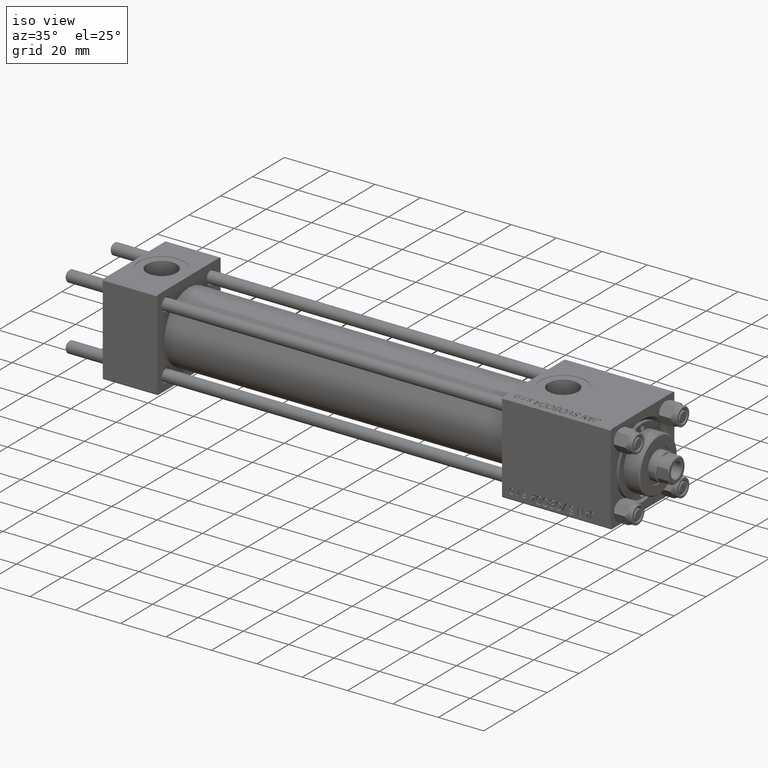
[diagram: clean part render]
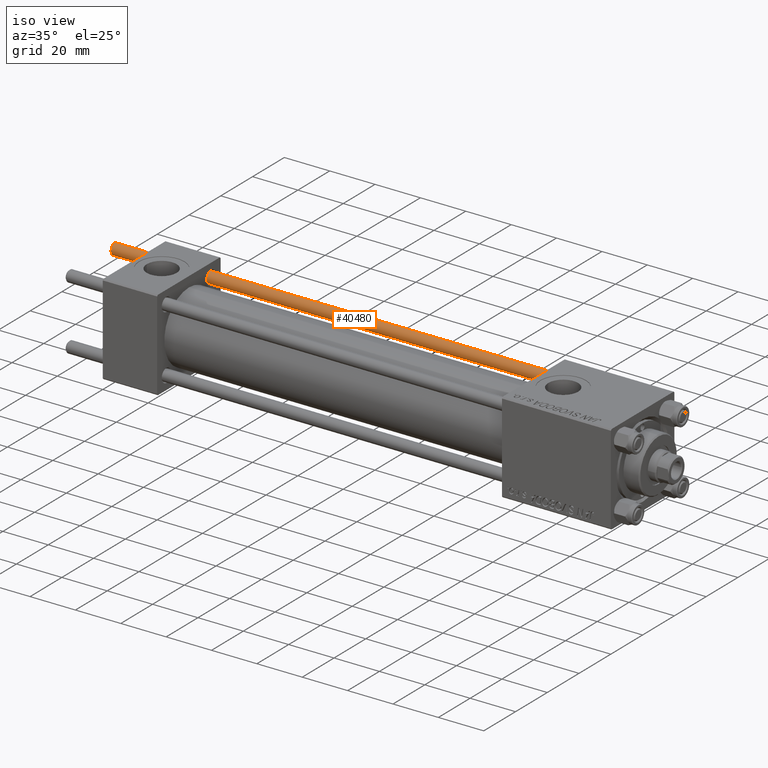
[diagram: same view with one face highlighted and labeled with its STEP entity id]
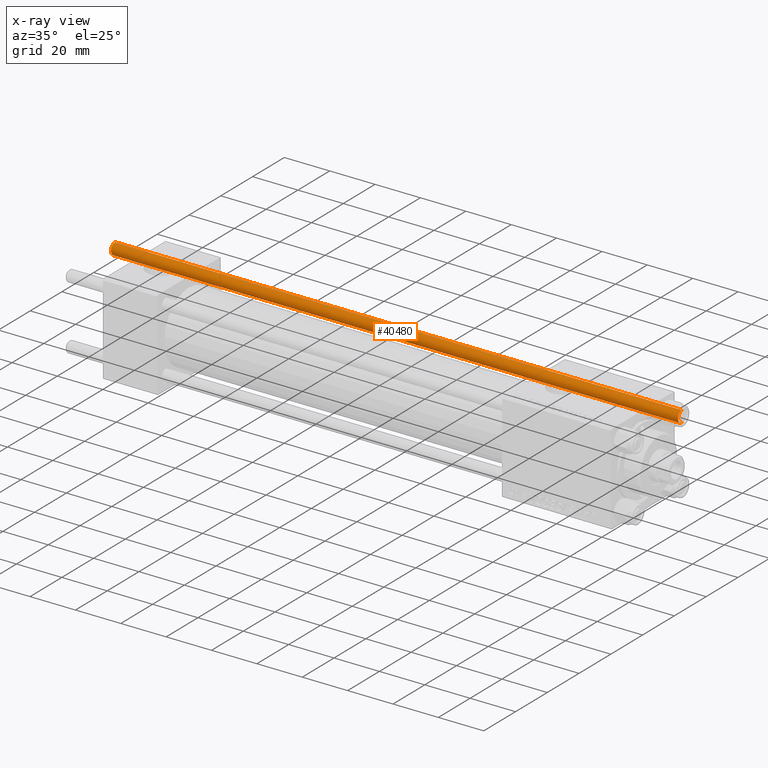
[diagram: x-ray of the same camera — body ghosted, the highlighted face saturated]
A machine part, iso view. The second image highlights one B-rep face of the part: STEP entity #40480.
The next image is the same camera in x-ray: the body ghosted, the highlighted face saturated — about 0% of this face is hidden behind the body in this view.
In plain terms, the highlighted cylindrical surface (edge-blend (fillet) strip) has radius 2.5 mm, axis along (-1, -0, -0).
Its self-contained STEP definition (entity closure, byte-faithful):
#270 = EDGE_LOOP ( 'NONE', ( #31993, #44321, #27144, #22770 ) ) ;
#5526 = DIRECTION ( 'NONE',  ( -0.000000000000000000, -0.000000000000000000, 1.000000000000000000 ) ) ;
#6102 = CARTESIAN_POINT ( 'NONE',  ( 0.000000000000000000, 0.000000000000000000, 251.0000000000000000 ) ) ;
#6579 = VECTOR ( 'NONE', #13740, 1000.000000000000000 ) ;
#6611 = AXIS2_PLACEMENT_3D ( 'NONE', #48527, #10158, #14443 ) ;
#7375 = CARTESIAN_POINT ( 'NONE',  ( -2.500000000000000000, 0.000000000000000000, 0.5000000000000559552 ) ) ;
#7504 = VERTEX_POINT ( 'NONE', #7375 ) ;
#9642 = FACE_OUTER_BOUND ( 'NONE', #270, .T. ) ;
#10158 = DIRECTION ( 'NONE',  ( 0.000000000000000000, 0.000000000000000000, -1.000000000000000000 ) ) ;
#10800 = AXIS2_PLACEMENT_3D ( 'NONE', #37028, #5526, #32261 ) ;
#11501 = CIRCLE ( 'NONE', #6611, 2.500000000000000000 ) ;
#11553 = VERTEX_POINT ( 'NONE', #42249 ) ;
#13740 = DIRECTION ( 'NONE',  ( -0.000000000000000000, -0.000000000000000000, -1.000000000000000000 ) ) ;
#14443 = DIRECTION ( 'NONE',  ( 1.000000000000000000, 0.000000000000000000, 0.000000000000000000 ) ) ;
#21256 = DIRECTION ( 'NONE',  ( -0.000000000000000000, -0.000000000000000000, -1.000000000000000000 ) ) ;
#22553 = DIRECTION ( 'NONE',  ( -0.000000000000000000, -0.000000000000000000, -1.000000000000000000 ) ) ;
#22770 = ORIENTED_EDGE ( 'NONE', *, *, #33162, .T. ) ;
#25027 = CYLINDRICAL_SURFACE ( 'NONE', #39564, 2.500000000000000000 ) ;
#25350 = CARTESIAN_POINT ( 'NONE',  ( 2.500000000000000000, 3.061616997868383141E-16, 251.0000000000000000 ) ) ;
#26877 = VECTOR ( 'NONE', #22553, 1000.000000000000000 ) ;
#27144 = ORIENTED_EDGE ( 'NONE', *, *, #47214, .T. ) ;
#28010 = EDGE_CURVE ( 'NONE', #42841, #11553, #36935, .T. ) ;
#28652 = EDGE_CURVE ( 'NONE', #42841, #46021, #11501, .T. ) ;
#30365 = LINE ( 'NONE', #38948, #26877 ) ;
#30661 = CARTESIAN_POINT ( 'NONE',  ( -2.500000000000000000, 0.000000000000000000, 250.5000000000000000 ) ) ;
#31756 = CIRCLE ( 'NONE', #10800, 2.500000000000000000 ) ;
#31993 = ORIENTED_EDGE ( 'NONE', *, *, #28010, .F. ) ;
#32261 = DIRECTION ( 'NONE',  ( 1.000000000000000000, 0.000000000000000000, 0.000000000000000000 ) ) ;
#33162 = EDGE_CURVE ( 'NONE', #7504, #11553, #31756, .T. ) ;
#36619 = DIRECTION ( 'NONE',  ( -1.000000000000000000, 0.000000000000000000, 0.000000000000000000 ) ) ;
#36935 = LINE ( 'NONE', #25350, #6579 ) ;
#37028 = CARTESIAN_POINT ( 'NONE',  ( 0.000000000000000000, 0.000000000000000000, 0.5000000000000559552 ) ) ;
#38948 = CARTESIAN_POINT ( 'NONE',  ( -2.500000000000000000, 0.000000000000000000, 251.0000000000000000 ) ) ;
#39564 = AXIS2_PLACEMENT_3D ( 'NONE', #6102, #21256, #36619 ) ;
#40480 = ADVANCED_FACE ( 'NONE', ( #9642 ), #25027, .T. ) ;
#40762 = CARTESIAN_POINT ( 'NONE',  ( 2.500000000000000000, 3.061616997868383141E-16, 250.5000000000000000 ) ) ;
#42249 = CARTESIAN_POINT ( 'NONE',  ( 2.500000000000000000, 3.061616997868383141E-16, 0.5000000000000559552 ) ) ;
#42841 = VERTEX_POINT ( 'NONE', #40762 ) ;
#44321 = ORIENTED_EDGE ( 'NONE', *, *, #28652, .T. ) ;
#46021 = VERTEX_POINT ( 'NONE', #30661 ) ;
#47214 = EDGE_CURVE ( 'NONE', #46021, #7504, #30365, .T. ) ;
#48527 = CARTESIAN_POINT ( 'NONE',  ( 0.000000000000000000, 0.000000000000000000, 250.5000000000000000 ) ) ;